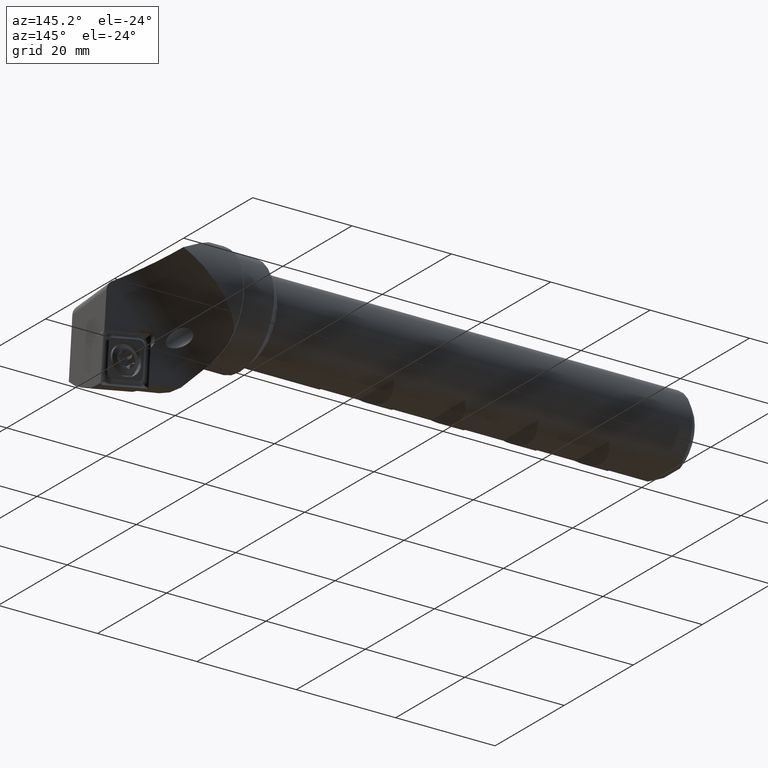
[diagram: clean part render]
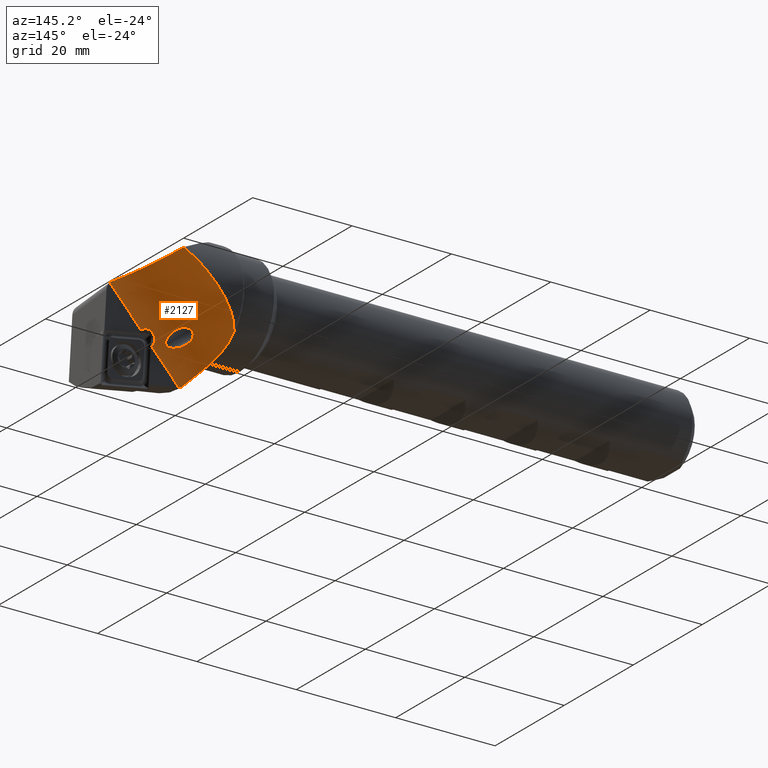
[diagram: same view with one face highlighted and labeled with its STEP entity id]
A machine part, auxiliary view. The second image highlights one B-rep face of the part: STEP entity #2127.
In plain terms, the highlighted cylindrical surface (partial cylindrical patch) has radius 12 mm, axis along (-0.7058, -0.0617, -0.7058).
Its self-contained STEP definition (entity closure, byte-faithful):
#61 = CARTESIAN_POINT ( 'NONE',  ( 104.8607599060487100, 9.433491665901369700, 4.610773795077020200 ) ) ;
#63 = CARTESIAN_POINT ( 'NONE',  ( 99.36003516995438600, 0.09958976254860735200, -15.94194115611820600 ) ) ;
#79 = CARTESIAN_POINT ( 'NONE',  ( 98.85281575516489700, 0.1149182974843242900, -15.85239922384331900 ) ) ;
#105 = CARTESIAN_POINT ( 'NONE',  ( 93.50000000000001400, 7.721552911417589400, -7.115308892534371500 ) ) ;
#116 = CARTESIAN_POINT ( 'NONE',  ( 106.2554933045272800, 0.9021774848352079900, -7.413517062176052400 ) ) ;
#118 = CARTESIAN_POINT ( 'NONE',  ( 105.0880587010746900, 0.6007268859313945600, -10.21391762499791700 ) ) ;
#124 = CARTESIAN_POINT ( 'NONE',  ( 99.12051418202139500, 1.933633092464633000, -8.872113296705066400 ) ) ;
#125 = CARTESIAN_POINT ( 'NONE',  ( 101.3911751361892200, 2.028435863456022700, -6.839093417648721900 ) ) ;
#270 = CARTESIAN_POINT ( 'NONE',  ( 105.0880587010746900, 0.6007268859313945600, -10.21391762499791700 ) ) ;
#271 = CARTESIAN_POINT ( 'NONE',  ( 104.9724034007747500, 0.6108191615005085200, -10.09856238738917300 ) ) ;
#272 = CARTESIAN_POINT ( 'NONE',  ( 104.8748811943268900, 0.6257884907449183800, -9.966965562384052300 ) ) ;
#273 = CARTESIAN_POINT ( 'NONE',  ( 104.7233476891586000, 0.6628876216487212800, -9.684560666322228800 ) ) ;
#274 = CARTESIAN_POINT ( 'NONE',  ( 104.6678923762067200, 0.6855086838717039400, -9.530139996484052700 ) ) ;
#275 = CARTESIAN_POINT ( 'NONE',  ( 104.5743512925596400, 0.7574306905685734800, -9.060608804211154800 ) ) ;
#276 = CARTESIAN_POINT ( 'NONE',  ( 104.6073078069038900, 0.8122527015139945300, -8.727325400314338600 ) ) ;
#277 = CARTESIAN_POINT ( 'NONE',  ( 104.7938452155616900, 0.8749501938748440700, -8.281907876569475100 ) ) ;
#278 = CARTESIAN_POINT ( 'NONE',  ( 104.8772783594927900, 0.8924925219046542200, -8.143691525084410200 ) ) ;
#279 = CARTESIAN_POINT ( 'NONE',  ( 105.0844869623545300, 0.9187309375939040100, -7.892960540323594300 ) ) ;
#280 = CARTESIAN_POINT ( 'NONE',  ( 105.2040976901193300, 0.9269723692140587900, -7.785051049424957600 ) ) ;
#281 = CARTESIAN_POINT ( 'NONE',  ( 105.4752318852259900, 0.9340362277307666700, -7.604058261573248600 ) ) ;
#282 = CARTESIAN_POINT ( 'NONE',  ( 105.6221890391447600, 0.9326797120141630000, -7.534439357030876700 ) ) ;
#283 = CARTESIAN_POINT ( 'NONE',  ( 106.2554933045272800, 0.9021774848352079900, -7.413517062176052400 ) ) ;
#287 = CARTESIAN_POINT ( 'NONE',  ( 105.9320106613063200, 0.9222862344186221200, -7.439311613171457600 ) ) ;
#289 = CARTESIAN_POINT ( 'NONE',  ( 106.0942694898544300, 0.9132318375551949900, -7.414484192721667800 ) ) ;
#339 = CARTESIAN_POINT ( 'NONE',  ( 99.12051418202139500, 1.933633092464633000, -8.872113296705066400 ) ) ;
#340 = CARTESIAN_POINT ( 'NONE',  ( 99.32116462669206700, 1.792324736836549600, -9.028878605078455500 ) ) ;
#341 = CARTESIAN_POINT ( 'NONE',  ( 99.54617551907405500, 1.664695581444895400, -9.162878935416147300 ) ) ;
#342 = CARTESIAN_POINT ( 'NONE',  ( 100.0231336708689300, 1.437881286408301500, -9.391641847708202200 ) ) ;
#343 = CARTESIAN_POINT ( 'NONE',  ( 100.2778280282986700, 1.337381773262513500, -9.487752385941711000 ) ) ;
#344 = CARTESIAN_POINT ( 'NONE',  ( 100.8091676697571700, 1.163402477867544200, -9.636926651950121300 ) ) ;
#345 = CARTESIAN_POINT ( 'NONE',  ( 101.0822990987058300, 1.090549973321918800, -9.690716351361457400 ) ) ;
#346 = CARTESIAN_POINT ( 'NONE',  ( 101.5078701047325200, 1.003705357093158400, -9.715667379212936400 ) ) ;
#347 = CARTESIAN_POINT ( 'NONE',  ( 101.6519551233634600, 0.9787339725752294300, -9.714227145310228900 ) ) ;
#348 = CARTESIAN_POINT ( 'NONE',  ( 101.9363256355285200, 0.9404272164360409900, -9.677252795435057600 ) ) ;
#349 = CARTESIAN_POINT ( 'NONE',  ( 102.0799673592833600, 0.9266433912120207700, -9.641412700313583900 ) ) ;
#350 = CARTESIAN_POINT ( 'NONE',  ( 102.2727788341228900, 0.9217516183196323700, -9.538641384085057200 ) ) ;
#351 = CARTESIAN_POINT ( 'NONE',  ( 102.3331594998683300, 0.9228766212470425100, -9.495681303117478900 ) ) ;
#352 = CARTESIAN_POINT ( 'NONE',  ( 102.4361133447885700, 0.9317773807945026700, -9.393172368285096500 ) ) ;
#353 = CARTESIAN_POINT ( 'NONE',  ( 102.4790356987428300, 0.9396801404259365100, -9.332853941723259400 ) ) ;
#354 = CARTESIAN_POINT ( 'NONE',  ( 102.5736324252514700, 0.9716241114347381500, -9.140366006256618500 ) ) ;
#355 = CARTESIAN_POINT ( 'NONE',  ( 102.5940802885695700, 1.004370327663117700, -8.993374515006710400 ) ) ;
#356 = CARTESIAN_POINT ( 'NONE',  ( 102.5851482484321600, 1.078437756539294900, -8.711822115825228300 ) ) ;
#357 = CARTESIAN_POINT ( 'NONE',  ( 102.5578588891782900, 1.119881347222051900, -8.575078925630357700 ) ) ;
#358 = CARTESIAN_POINT ( 'NONE',  ( 102.4793806178843900, 1.209817544350452600, -8.308951916069666800 ) ) ;
#359 = CARTESIAN_POINT ( 'NONE',  ( 102.4282562754324600, 1.257738708443774300, -8.181388731838682200 ) ) ;
#360 = CARTESIAN_POINT ( 'NONE',  ( 102.2512895018271000, 1.410376538640509800, -7.811571150992969900 ) ) ;
#361 = CARTESIAN_POINT ( 'NONE',  ( 102.1060714253765800, 1.520945373004911800, -7.588825020457059100 ) ) ;
#363 = CARTESIAN_POINT ( 'NONE',  ( 101.3911751361892200, 2.028435863456022700, -6.839093417648721900 ) ) ;
#365 = CARTESIAN_POINT ( 'NONE',  ( 101.5912210385555500, 1.892842752871830300, -6.995386405809103500 ) ) ;
#375 = CARTESIAN_POINT ( 'NONE',  ( 101.7771432721459300, 1.761692388100402700, -7.180771574353253900 ) ) ;
#525 = CARTESIAN_POINT ( 'NONE',  ( 107.4170512807753400, 0.8044873340912162000, -7.884925045297285900 ) ) ;
#573 = EDGE_CURVE ( 'NONE', #1339, #1340, #5028, .T. ) ;
#587 = EDGE_CURVE ( 'NONE', #1348, #1346, #5016, .T. ) ;
#806 = CARTESIAN_POINT ( 'NONE',  ( 114.1063192514600400, 1.389722448813216000, -1.195657074612603600 ) ) ;
#1010 = ORIENTED_EDGE ( 'NONE', *, *, #5098, .T. ) ;
#1011 = ORIENTED_EDGE ( 'NONE', *, *, #5099, .T. ) ;
#1012 = ORIENTED_EDGE ( 'NONE', *, *, #5101, .T. ) ;
#1013 = ORIENTED_EDGE ( 'NONE', *, *, #5102, .T. ) ;
#1014 = ORIENTED_EDGE ( 'NONE', *, *, #587, .T. ) ;
#1015 = ORIENTED_EDGE ( 'NONE', *, *, #5103, .T. ) ;
#1016 = ORIENTED_EDGE ( 'NONE', *, *, #5079, .F. ) ;
#1017 = ORIENTED_EDGE ( 'NONE', *, *, #2228, .F. ) ;
#1018 = ORIENTED_EDGE ( 'NONE', *, *, #5104, .T. ) ;
#1019 = ORIENTED_EDGE ( 'NONE', *, *, #5105, .F. ) ;
#1020 = ORIENTED_EDGE ( 'NONE', *, *, #573, .F. ) ;
#1339 = VERTEX_POINT ( 'NONE', #125 ) ;
#1340 = VERTEX_POINT ( 'NONE', #124 ) ;
#1346 = VERTEX_POINT ( 'NONE', #118 ) ;
#1348 = VERTEX_POINT ( 'NONE', #116 ) ;
#1359 = VERTEX_POINT ( 'NONE', #105 ) ;
#1385 = VERTEX_POINT ( 'NONE', #79 ) ;
#1401 = VERTEX_POINT ( 'NONE', #63 ) ;
#1403 = VERTEX_POINT ( 'NONE', #61 ) ;
#1412 = VERTEX_POINT ( 'NONE', #2341 ) ;
#1414 = VERTEX_POINT ( 'NONE', #806 ) ;
#1415 = VERTEX_POINT ( 'NONE', #525 ) ;
#1611 = FACE_OUTER_BOUND ( 'NONE', #4697, .T. ) ;
#1616 = FACE_BOUND ( 'NONE', #4694, .T. ) ;
#1618 = CYLINDRICAL_SURFACE ( 'NONE', #2039, 11.99999999999999600 ) ;
#2039 = AXIS2_PLACEMENT_3D ( 'NONE', #2793, #2794, #2788 ) ;
#2127 = ADVANCED_FACE ( 'NONE', ( #1611, #1616 ), #1618, .F. ) ;
#2228 = EDGE_CURVE ( 'NONE', #1359, #1385, #5017, .T. ) ;
#2341 = CARTESIAN_POINT ( 'NONE',  ( 113.6843387167244300, 1.430043285919686100, -0.8695162718398408200 ) ) ;
#2788 = DIRECTION ( 'NONE',  ( -0.7071067811865463500, 0.0000000000000000000, 0.7071067811865486800 ) ) ;
#2793 = CARTESIAN_POINT ( 'NONE',  ( 125.2156976172273100, 14.31600349173901800, 8.867852378182744700 ) ) ;
#2794 = DIRECTION ( 'NONE',  ( -0.7057575568079529300, -0.06174578541845262400, -0.7057575568079506000 ) ) ;
#3129 = CARTESIAN_POINT ( 'NONE',  ( 93.50000000000001400, 7.721552911417589400, -7.115308892534371500 ) ) ;
#3130 = CARTESIAN_POINT ( 'NONE',  ( 93.45177686238197600, 7.499990872482540800, -7.284586162151290600 ) ) ;
#3135 = CARTESIAN_POINT ( 'NONE',  ( 93.41371911003715000, 7.276711462085004600, -7.454820360837766600 ) ) ;
#3136 = CARTESIAN_POINT ( 'NONE',  ( 93.36013332132557700, 6.826731425937213200, -7.797911969611475600 ) ) ;
#3137 = CARTESIAN_POINT ( 'NONE',  ( 93.34460791185738100, 6.599044296629193300, -7.971520208255884500 ) ) ;
#3138 = CARTESIAN_POINT ( 'NONE',  ( 93.33544774086267600, 5.918408925704604000, -8.492369788817333300 ) ) ;
#3139 = CARTESIAN_POINT ( 'NONE',  ( 93.37896956478910200, 5.472196999605628800, -8.836152798044022200 ) ) ;
#3140 = CARTESIAN_POINT ( 'NONE',  ( 93.56522049757452900, 4.602148901546023300, -9.525945448952711600 ) ) ;
#3141 = CARTESIAN_POINT ( 'NONE',  ( 93.70790336703470300, 4.178315037453366200, -9.871969985442188300 ) ) ;
#3142 = CARTESIAN_POINT ( 'NONE',  ( 94.08954986122125800, 3.362931938231651600, -10.57940066030499800 ) ) ;
#3143 = CARTESIAN_POINT ( 'NONE',  ( 94.32364083895160400, 2.981856930746722000, -10.93212094312334800 ) ) ;
#3144 = CARTESIAN_POINT ( 'NONE',  ( 94.85830849300207000, 2.281731027476109100, -11.64435833588111700 ) ) ;
#3145 = CARTESIAN_POINT ( 'NONE',  ( 95.16029066846587600, 1.960771789546840600, -12.00582197023979500 ) ) ;
#3146 = CARTESIAN_POINT ( 'NONE',  ( 95.81646020841589000, 1.386246338866575300, -12.74565382442522600 ) ) ;
#3147 = CARTESIAN_POINT ( 'NONE',  ( 96.16486823424158100, 1.137294574687481900, -13.11779636736192400 ) ) ;
#3148 = CARTESIAN_POINT ( 'NONE',  ( 96.89168897495554200, 0.7137257514621437900, -13.87536965233166500 ) ) ;
#3149 = CARTESIAN_POINT ( 'NONE',  ( 97.27016488562310300, 0.5391029671121331200, -14.26073706424893000 ) ) ;
#3150 = CARTESIAN_POINT ( 'NONE',  ( 98.05227326057335800, 0.2664363625829841400, -15.05063419718875100 ) ) ;
#3151 = CARTESIAN_POINT ( 'NONE',  ( 98.45013189168460600, 0.1704524800321412000, -15.44930219740515800 ) ) ;
#3152 = CARTESIAN_POINT ( 'NONE',  ( 98.85281575516489700, 0.1149182974843242900, -15.85239922384331900 ) ) ;
#3831 = CARTESIAN_POINT ( 'NONE',  ( 99.02220147389944300, 0.1072871304342347300, -15.88232260136195100 ) ) ;
#3832 = CARTESIAN_POINT ( 'NONE',  ( 98.85281575516489700, 0.1149182974843242900, -15.85239922384331900 ) ) ;
#3837 = CARTESIAN_POINT ( 'NONE',  ( 99.19127291873040500, 0.1021946667938836600, -15.91216696435111500 ) ) ;
#3838 = CARTESIAN_POINT ( 'NONE',  ( 99.36003516995438600, 0.09958976254860735200, -15.94194115611820600 ) ) ;
#3881 = CARTESIAN_POINT ( 'NONE',  ( 104.8607599060487100, 9.433491665901369700, 4.610773795077020200 ) ) ;
#3890 = CARTESIAN_POINT ( 'NONE',  ( 106.0819556094504500, 4.846716279546243700, 3.665725972323921100 ) ) ;
#3901 = CARTESIAN_POINT ( 'NONE',  ( 113.8395157012324000, 1.414468672561913800, -0.9591832899288885700 ) ) ;
#3902 = CARTESIAN_POINT ( 'NONE',  ( 113.6843387167244300, 1.430043285919686100, -0.8695162718398408200 ) ) ;
#3903 = CARTESIAN_POINT ( 'NONE',  ( 109.3715224793151000, 1.862906739180856000, 1.622588938225446800 ) ) ;
#3904 = CARTESIAN_POINT ( 'NONE',  ( 113.6843387167244300, 1.430043285919686100, -0.8695162718398408200 ) ) ;
#3905 = CARTESIAN_POINT ( 'NONE',  ( 107.3399835944129800, 0.8111451102299355200, -7.808826315811646000 ) ) ;
#3906 = CARTESIAN_POINT ( 'NONE',  ( 107.4170512807753400, 0.8044873340912162000, -7.884925045297285900 ) ) ;
#3907 = CARTESIAN_POINT ( 'NONE',  ( 113.9801595595713100, 1.400899562625620200, -1.067902079143001200 ) ) ;
#3908 = CARTESIAN_POINT ( 'NONE',  ( 114.1063192514600400, 1.389722448813216000, -1.195657074612603600 ) ) ;
#3909 = CARTESIAN_POINT ( 'NONE',  ( 125.2156976172273300, 2.361667114638065900, 9.913721291154670800 ) ) ;
#3910 = DIRECTION ( 'NONE',  ( -0.7057575568079529300, -0.06174578541845262400, -0.7057575568079506000 ) ) ;
#3911 = CARTESIAN_POINT ( 'NONE',  ( 93.62530932292040100, 7.947218086606441500, -6.870416419585891000 ) ) ;
#3912 = CARTESIAN_POINT ( 'NONE',  ( 93.50000000000001400, 7.721552911417589400, -7.115308892534371500 ) ) ;
#3913 = CARTESIAN_POINT ( 'NONE',  ( 107.2567524313539900, 0.8184994541443274500, -7.741637559213366200 ) ) ;
#3914 = CARTESIAN_POINT ( 'NONE',  ( 107.0784795915378300, 0.8343819108284769000, -7.624313025808026700 ) ) ;
#3915 = CARTESIAN_POINT ( 'NONE',  ( 106.9823145953865300, 0.8430105646539612900, -7.573778667829621700 ) ) ;
#3916 = CARTESIAN_POINT ( 'NONE',  ( 106.7834041728695100, 0.8605142028186132400, -7.493226167228637100 ) ) ;
#3917 = CARTESIAN_POINT ( 'NONE',  ( 106.6811253911752000, 0.8693479437507621900, -7.463091535485266300 ) ) ;
#3918 = CARTESIAN_POINT ( 'NONE',  ( 106.4709461641224900, 0.8864987313816079500, -7.422808900726124600 ) ) ;
#3919 = CARTESIAN_POINT ( 'NONE',  ( 106.3623890854482400, 0.8948481478574407100, -7.412875828279336300 ) ) ;
#3920 = CARTESIAN_POINT ( 'NONE',  ( 106.2554933045272800, 0.9021774848352079900, -7.413517062176052400 ) ) ;
#3921 = CARTESIAN_POINT ( 'NONE',  ( 125.2156976172273300, 2.361667114638065900, 9.913721291154670800 ) ) ;
#3922 = DIRECTION ( 'NONE',  ( -0.7057575568079529300, -0.06174578541845262400, -0.7057575568079506000 ) ) ;
#3923 = CARTESIAN_POINT ( 'NONE',  ( 98.95111497396261800, 2.052932721103754200, -8.739764130307111900 ) ) ;
#3924 = CARTESIAN_POINT ( 'NONE',  ( 99.12051418202139500, 1.933633092464633000, -8.872113296705066400 ) ) ;
#3925 = CARTESIAN_POINT ( 'NONE',  ( 93.77473662639405900, 8.154868036684753500, -6.621864857033314100 ) ) ;
#3926 = CARTESIAN_POINT ( 'NONE',  ( 94.10952418197686600, 8.540362650603022100, -6.116630827239808900 ) ) ;
#3927 = CARTESIAN_POINT ( 'NONE',  ( 94.29393014264991300, 8.716660150826687200, -5.861699723409130600 ) ) ;
#3928 = CARTESIAN_POINT ( 'NONE',  ( 94.87467229591331400, 9.196556176488874400, -5.102166777201878400 ) ) ;
#3929 = CARTESIAN_POINT ( 'NONE',  ( 95.30190301838116800, 9.456698041392384000, -4.596439648636830600 ) ) ;
#3930 = CARTESIAN_POINT ( 'NONE',  ( 95.97921289746769000, 9.779845029981221000, -3.831609324025689700 ) ) ;
#3931 = CARTESIAN_POINT ( 'NONE',  ( 96.21207445599019100, 9.876358141464137900, -3.574884507398645300 ) ) ;
#3932 = CARTESIAN_POINT ( 'NONE',  ( 96.68294628411108200, 10.04633128532404900, -3.064877988635593000 ) ) ;
#3933 = CARTESIAN_POINT ( 'NONE',  ( 96.92133308190034300, 10.12005031958177700, -2.811148072129572300 ) ) ;
#3934 = CARTESIAN_POINT ( 'NONE',  ( 97.64365038661077300, 10.31061688832434200, -2.052575747547617600 ) ) ;
#3935 = CARTESIAN_POINT ( 'NONE',  ( 98.13458917230255500, 10.39709128233719700, -1.550236098317858500 ) ) ;
#3936 = CARTESIAN_POINT ( 'NONE',  ( 99.13143235308213300, 10.49763996040879400, -0.5498130185875849100 ) ) ;
#3937 = CARTESIAN_POINT ( 'NONE',  ( 99.63739466666032700, 10.51157322500585800, -0.05176614496347925500 ) ) ;
#3938 = CARTESIAN_POINT ( 'NONE',  ( 100.6649714708598800, 10.46967523391143500, 0.9390164507855945900 ) ) ;
#3939 = CARTESIAN_POINT ( 'NONE',  ( 101.1837271615213600, 10.41361400000120300, 1.428844925001855600 ) ) ;
#3940 = CARTESIAN_POINT ( 'NONE',  ( 102.7399427029818900, 10.14971572423321600, 2.858861339790812500 ) ) ;
#3941 = CARTESIAN_POINT ( 'NONE',  ( 103.7844953139171800, 9.845379119761297200, 3.768065599887441900 ) ) ;
#3942 = CARTESIAN_POINT ( 'NONE',  ( 104.8607599060487100, 9.433491665901369700, 4.610773795077020200 ) ) ;
#3945 = CARTESIAN_POINT ( 'NONE',  ( 98.80277009897962200, 2.179112889588835400, -8.594499390953389600 ) ) ;
#3946 = CARTESIAN_POINT ( 'NONE',  ( 98.56225176157029500, 2.444801544902343700, -8.265314124913876600 ) ) ;
#3947 = CARTESIAN_POINT ( 'NONE',  ( 98.47028659953740300, 2.585554680213092600, -8.079824530606559900 ) ) ;
#3948 = CARTESIAN_POINT ( 'NONE',  ( 98.41048033865945400, 2.785729673322898200, -7.775220678916868500 ) ) ;
#3949 = CARTESIAN_POINT ( 'NONE',  ( 98.40379966693832600, 2.850294875212263400, -7.669522443128199600 ) ) ;
#3950 = CARTESIAN_POINT ( 'NONE',  ( 98.42217468300329100, 2.967607359026291900, -7.455315754574458600 ) ) ;
#3951 = CARTESIAN_POINT ( 'NONE',  ( 98.44789919919706700, 3.021287383662413500, -7.344649958573163500 ) ) ;
#3952 = CARTESIAN_POINT ( 'NONE',  ( 98.53178371284646200, 3.107067778940212100, -7.132611411404099000 ) ) ;
#3953 = CARTESIAN_POINT ( 'NONE',  ( 98.59147035364652800, 3.140656745552611100, -7.027410690927895900 ) ) ;
#3954 = CARTESIAN_POINT ( 'NONE',  ( 98.73826796526636000, 3.181889281761847600, -6.835107832032699400 ) ) ;
#3955 = CARTESIAN_POINT ( 'NONE',  ( 98.82613031037303100, 3.189975519050985300, -6.746615911775244900 ) ) ;
#3956 = CARTESIAN_POINT ( 'NONE',  ( 99.11546605084556900, 3.177724497202241100, -6.517463431269211700 ) ) ;
#3957 = CARTESIAN_POINT ( 'NONE',  ( 99.34078429460129200, 3.121359586132209000, -6.413876173939055300 ) ) ;
#3958 = CARTESIAN_POINT ( 'NONE',  ( 99.68047218115116000, 2.997720805208191400, -6.331943448937615800 ) ) ;
#3959 = CARTESIAN_POINT ( 'NONE',  ( 99.79235521818881700, 2.950899036053051400, -6.316796019170158900 ) ) ;
#3960 = CARTESIAN_POINT ( 'NONE',  ( 100.0144677512813700, 2.849288728169519800, -6.306645324254329700 ) ) ;
#3961 = CARTESIAN_POINT ( 'NONE',  ( 100.1256038442688700, 2.793956082387787800, -6.311889162316829200 ) ) ;
#3962 = CARTESIAN_POINT ( 'NONE',  ( 100.4487446952657500, 2.623472925647599500, -6.354118918879967400 ) ) ;
#3963 = CARTESIAN_POINT ( 'NONE',  ( 100.6518178237436400, 2.503858218205215400, -6.416219144105339100 ) ) ;
#3964 = CARTESIAN_POINT ( 'NONE',  ( 101.0420031878919400, 2.261525533797935000, -6.594171563295224900 ) ) ;
#3965 = CARTESIAN_POINT ( 'NONE',  ( 101.2222863131822400, 2.142910394468833700, -6.707143007755729700 ) ) ;
#3966 = CARTESIAN_POINT ( 'NONE',  ( 101.3911751361892200, 2.028435863456022700, -6.839093417648721900 ) ) ;
#4373 = LINE ( 'NONE', #3909, #4374 ) ;
#4374 = VECTOR ( 'NONE', #3910, 1000.000000000000000 ) ;
#4375 = LINE ( 'NONE', #3921, #4376 ) ;
#4376 = VECTOR ( 'NONE', #3922, 1000.000000000000000 ) ;
#4694 = EDGE_LOOP ( 'NONE', ( #1019, #1020 ) ) ;
#4697 = EDGE_LOOP ( 'NONE', ( #1010, #1011, #1012, #1013, #1014, #1015, #1016, #1017, #1018 ) ) ;
#5016 = B_SPLINE_CURVE_WITH_KNOTS ( 'NONE', 3,
 ( #283, #289, #287, #282, #281, #280, #279, #278, #277, #276, #275, #274, #273, #272, #271, #270 ),
 .UNSPECIFIED., .F., .F.,
 ( 4, 2, 2, 2, 2, 2, 2, 4 ),
 ( 0.001283540410341669600, 0.001767510122380768800, 0.002251479834419868100, 0.002735449546458967500, 0.003219419258498067000, 0.004187358682576277100, 0.004671328394615379200, 0.005155298106654481300 ),
 .UNSPECIFIED. ) ;
#5017 = B_SPLINE_CURVE_WITH_KNOTS ( 'NONE', 3,
 ( #3129, #3130, #3135, #3136, #3137, #3138, #3139, #3140, #3141, #3142, #3143, #3144, #3145, #3146, #3147, #3148, #3149, #3150, #3151, #3152 ),
 .UNSPECIFIED., .F., .F.,
 ( 4, 2, 2, 2, 2, 2, 2, 2, 2, 4 ),
 ( 0.01145904631158567600, 0.01229704166466893100, 0.01313503701775218600, 0.01481102772391869200, 0.01648701843008519900, 0.01816300913625170500, 0.01983899984241821500, 0.02151499054858472100, 0.02319098125475122600, 0.02486697196091773600 ),
 .UNSPECIFIED. ) ;
#5028 = B_SPLINE_CURVE_WITH_KNOTS ( 'NONE', 3,
 ( #363, #365, #375, #361, #360, #359, #358, #357, #356, #355, #354, #353, #352, #351, #350, #349, #348, #347, #346, #345, #344, #343, #342, #341, #340, #339 ),
 .UNSPECIFIED., .F., .F.,
 ( 4, 2, 2, 2, 2, 2, 2, 2, 2, 2, 2, 2, 4 ),
 ( 0.005820029633878567700, 0.006681745242983593500, 0.007543460852088619400, 0.007974318656641121000, 0.008405176461193623500, 0.008836034265746126000, 0.009051463168022378200, 0.009266892070298632000, 0.009697749874851138000, 0.01012860767940364100, 0.01099032328850865100, 0.01185203889761365900, 0.01271375450671866800 ),
 .UNSPECIFIED. ) ;
#5079 = EDGE_CURVE ( 'NONE', #1385, #1401, #5145, .T. ) ;
#5098 = EDGE_CURVE ( 'NONE', #1403, #1412, #5152, .T. ) ;
#5099 = EDGE_CURVE ( 'NONE', #1412, #1414, #5153, .T. ) ;
#5101 = EDGE_CURVE ( 'NONE', #1414, #1415, #4373, .T. ) ;
#5102 = EDGE_CURVE ( 'NONE', #1415, #1348, #5154, .T. ) ;
#5103 = EDGE_CURVE ( 'NONE', #1346, #1401, #4375, .T. ) ;
#5104 = EDGE_CURVE ( 'NONE', #1359, #1403, #5155, .T. ) ;
#5105 = EDGE_CURVE ( 'NONE', #1340, #1339, #5156, .T. ) ;
#5145 = B_SPLINE_CURVE_WITH_KNOTS ( 'NONE', 3,
 ( #3832, #3831, #3837, #3838 ),
 .UNSPECIFIED., .F., .F.,
 ( 4, 4 ),
 ( 2.003319354322515800E-007, 0.0005092012366748806800 ),
 .UNSPECIFIED. ) ;
#5152 =( BOUNDED_CURVE ( )  B_SPLINE_CURVE ( 3, ( #3881, #3890, #3903, #3904 ),
 .UNSPECIFIED., .F., .F. ) 
 B_SPLINE_CURVE_WITH_KNOTS ( ( 4, 4 ),
 ( 6.221211211088721900, 7.364006325178061200 ),
 .UNSPECIFIED. ) 
 CURVE ( )  GEOMETRIC_REPRESENTATION_ITEM ( )  RATIONAL_B_SPLINE_CURVE ( ( 1.000000000000000000, 0.8940973244337439000, 0.8940973244337439000, 1.000000000000000000 ) ) 
 REPRESENTATION_ITEM ( '' )  );
#5153 = B_SPLINE_CURVE_WITH_KNOTS ( 'NONE', 3,
 ( #3902, #3901, #3907, #3908 ),
 .UNSPECIFIED., .F., .F.,
 ( 4, 4 ),
 ( 4.336808689942017700E-019, 0.0005348468611050992900 ),
 .UNSPECIFIED. ) ;
#5154 = B_SPLINE_CURVE_WITH_KNOTS ( 'NONE', 3,
 ( #3906, #3905, #3913, #3914, #3915, #3916, #3917, #3918, #3919, #3920 ),
 .UNSPECIFIED., .F., .F.,
 ( 4, 2, 2, 2, 4 ),
 ( 0.0000000000000000000, 0.0003208851025854174000, 0.0006417702051708348100, 0.0009626553077562522100, 0.001283540410341669600 ),
 .UNSPECIFIED. ) ;
#5155 = B_SPLINE_CURVE_WITH_KNOTS ( 'NONE', 3,
 ( #3912, #3911, #3925, #3926, #3927, #3928, #3929, #3930, #3931, #3932, #3933, #3934, #3935, #3936, #3937, #3938, #3939, #3940, #3941, #3942 ),
 .UNSPECIFIED., .F., .F.,
 ( 4, 2, 2, 2, 2, 2, 2, 2, 2, 4 ),
 ( 0.0009989057051025826800, 0.002066228463037964600, 0.003133551220973346000, 0.005268196736844108500, 0.006335519494779503400, 0.007402842252714897400, 0.009537487768585716600, 0.01167213328445653200, 0.01380677880032734800, 0.01807606983206898000 ),
 .UNSPECIFIED. ) ;
#5156 = B_SPLINE_CURVE_WITH_KNOTS ( 'NONE', 3,
 ( #3924, #3923, #3945, #3946, #3947, #3948, #3949, #3950, #3951, #3952, #3953, #3954, #3955, #3956, #3957, #3958, #3959, #3960, #3961, #3962, #3963, #3964, #3965, #3966 ),
 .UNSPECIFIED., .F., .F.,
 ( 4, 2, 2, 2, 2, 2, 2, 2, 2, 2, 2, 4 ),
 ( 0.0000000000000000000, 0.0007275037042348071900, 0.001455007408469614400, 0.001818759260587023600, 0.002182511112704432400, 0.002546262964821841900, 0.002910014816939250900, 0.003637518521174071100, 0.004001270373291498800, 0.004365022225408927300, 0.005092525929643747100, 0.005820029633878567700 ),
 .UNSPECIFIED. ) ;